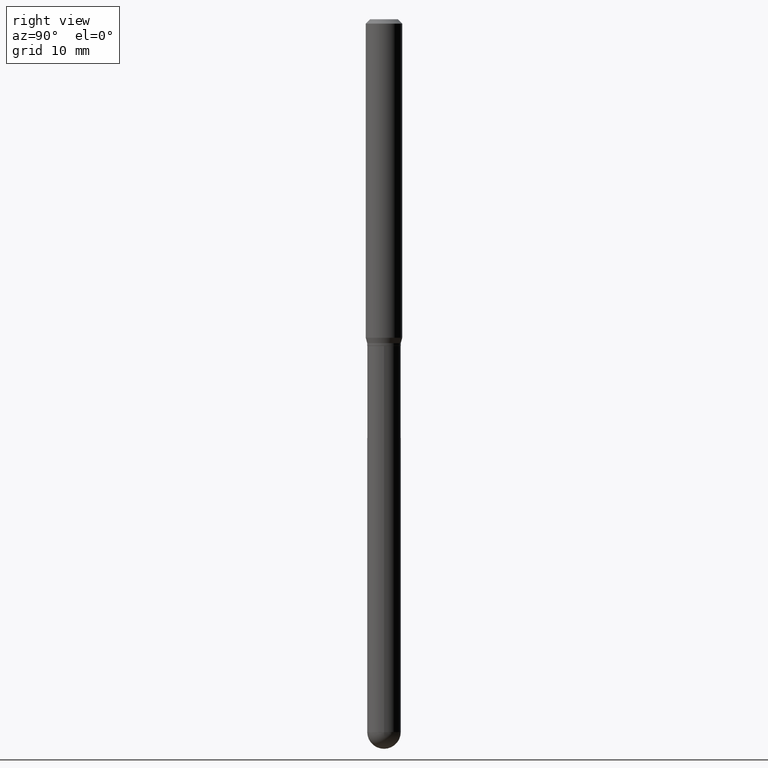
[diagram: clean part render]
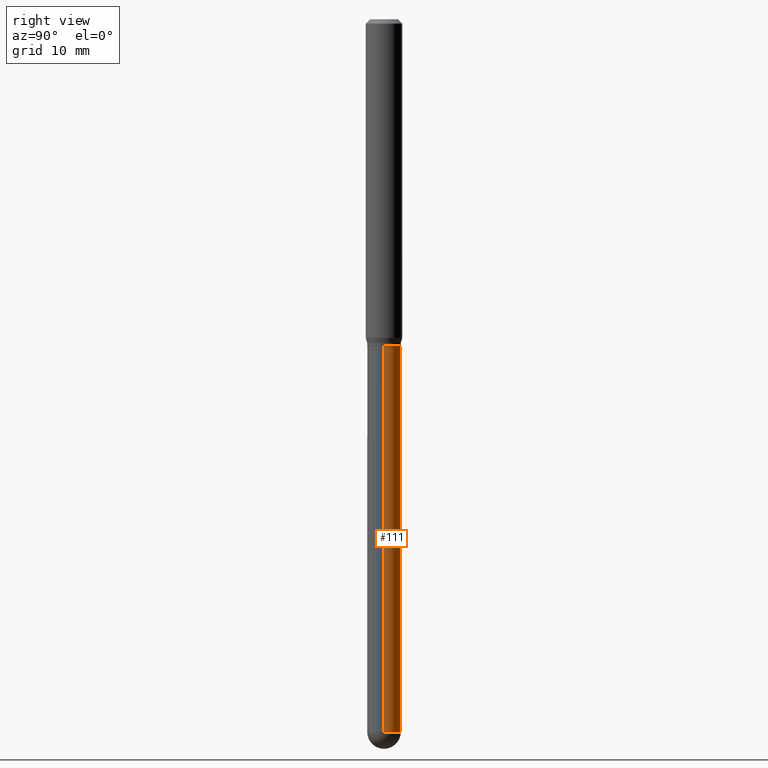
[diagram: same view with one face highlighted and labeled with its STEP entity id]
A machine part, right view. The second image highlights one B-rep face of the part: STEP entity #111.
In plain terms, the highlighted cylindrical surface (edge-blend (fillet) strip) has radius 1.4605 mm, axis along (-0, 0, 1).
Its self-contained STEP definition (entity closure, byte-faithful):
#20 = CARTESIAN_POINT ( 'NONE',  ( -0.05750000000000000250, -5.810639061752296196E-15, -1.120000000000000329 ) ) ;
#31 = EDGE_LOOP ( 'NONE', ( #298, #279, #122, #299, #134 ) ) ;
#37 = DIRECTION ( 'NONE',  ( -2.445468806185136877E-29, 3.491481338843145188E-15, 1.000000000000000000 ) ) ;
#42 = CARTESIAN_POINT ( 'NONE',  ( 0.05750000000000000250, -4.311979453471284209E-15, -1.120000000000000329 ) ) ;
#68 = CYLINDRICAL_SURFACE ( 'NONE', #506, 0.05750000000000000250 ) ;
#85 = VERTEX_POINT ( 'NONE', #20 ) ;
#88 = EDGE_CURVE ( 'NONE', #437, #252, #151, .T. ) ;
#111 = ADVANCED_FACE ( 'NONE', ( #491 ), #68, .T. ) ;
#113 = AXIS2_PLACEMENT_3D ( 'NONE', #294, #182, #453 ) ;
#119 = CARTESIAN_POINT ( 'NONE',  ( 2.738925062927354020E-29, -3.910459099504324188E-15, -1.120000000000000329 ) ) ;
#122 = ORIENTED_EDGE ( 'NONE', *, *, #318, .F. ) ;
#123 = EDGE_CURVE ( 'NONE', #314, #333, #433, .T. ) ;
#134 = ORIENTED_EDGE ( 'NONE', *, *, #251, .T. ) ;
#145 = CARTESIAN_POINT ( 'NONE',  ( 0.000000000000000000, 0.000000000000000000, 0.000000000000000000 ) ) ;
#146 = DIRECTION ( 'NONE',  ( 1.000000000000000000, -6.982962677686265133E-15, 0.000000000000000000 ) ) ;
#149 = DIRECTION ( 'NONE',  ( -2.445468806185136877E-29, 3.491481338843145188E-15, 1.000000000000000000 ) ) ;
#151 = LINE ( 'NONE', #323, #194 ) ;
#160 = CARTESIAN_POINT ( 'NONE',  ( 0.05750000000000000250, -6.620721488781313792E-15, -2.442499999999999893 ) ) ;
#165 = DIRECTION ( 'NONE',  ( 1.000000000000000000, -6.982962677686273810E-15, 0.000000000000000000 ) ) ;
#182 = DIRECTION ( 'NONE',  ( -2.445468806185136597E-29, 3.491481338843145583E-15, 1.000000000000000000 ) ) ;
#187 = LINE ( 'NONE', #470, #443 ) ;
#194 = VECTOR ( 'NONE', #149, 39.37007874015748143 ) ;
#228 = DIRECTION ( 'NONE',  ( 1.000000000000000000, -6.982962677686265922E-15, 4.876176775795935232E-29 ) ) ;
#251 = EDGE_CURVE ( 'NONE', #437, #314, #393, .T. ) ;
#252 = VERTEX_POINT ( 'NONE', #42 ) ;
#278 = CIRCLE ( 'NONE', #466, 0.05750000000000000250 ) ;
#279 = ORIENTED_EDGE ( 'NONE', *, *, #395, .T. ) ;
#294 = CARTESIAN_POINT ( 'NONE',  ( 5.973057559107196227E-29, -8.527943170124383355E-15, -2.442499999999999893 ) ) ;
#298 = ORIENTED_EDGE ( 'NONE', *, *, #123, .T. ) ;
#299 = ORIENTED_EDGE ( 'NONE', *, *, #88, .F. ) ;
#314 = VERTEX_POINT ( 'NONE', #322 ) ;
#318 = EDGE_CURVE ( 'NONE', #252, #85, #278, .T. ) ;
#322 = CARTESIAN_POINT ( 'NONE',  ( 4.015203539670203189E-16, 0.05749999999999149541, -2.442500000000000338 ) ) ;
#323 = CARTESIAN_POINT ( 'NONE',  ( 0.05750000000000000250, -4.015203539669603161E-16, 2.803801646082662941E-30 ) ) ;
#333 = VERTEX_POINT ( 'NONE', #420 ) ;
#393 = CIRCLE ( 'NONE', #435, 0.05750000000000000250 ) ;
#395 = EDGE_CURVE ( 'NONE', #333, #85, #187, .T. ) ;
#420 = CARTESIAN_POINT ( 'NONE',  ( -0.05750000000000000250, -5.810639061752296196E-15, -2.442499999999999893 ) ) ;
#433 = CIRCLE ( 'NONE', #113, 0.05750000000000000250 ) ;
#435 = AXIS2_PLACEMENT_3D ( 'NONE', #438, #441, #165 ) ;
#437 = VERTEX_POINT ( 'NONE', #160 ) ;
#438 = CARTESIAN_POINT ( 'NONE',  ( 5.973057559107196227E-29, -8.527943170124383355E-15, -2.442499999999999893 ) ) ;
#441 = DIRECTION ( 'NONE',  ( -2.445468806185136597E-29, 3.491481338843145583E-15, 1.000000000000000000 ) ) ;
#443 = VECTOR ( 'NONE', #37, 39.37007874015748143 ) ;
#453 = DIRECTION ( 'NONE',  ( 1.000000000000000000, -6.982962677686273810E-15, 0.000000000000000000 ) ) ;
#458 = DIRECTION ( 'NONE',  ( -2.445468806185136597E-29, 3.491481338843145583E-15, 1.000000000000000000 ) ) ;
#466 = AXIS2_PLACEMENT_3D ( 'NONE', #119, #500, #146 ) ;
#470 = CARTESIAN_POINT ( 'NONE',  ( -0.05750000000000000250, 4.085620730620576246E-16, -2.828387676896570712E-30 ) ) ;
#491 = FACE_OUTER_BOUND ( 'NONE', #31, .T. ) ;
#500 = DIRECTION ( 'NONE',  ( -2.445468806185136597E-29, 3.491481338843145583E-15, 1.000000000000000000 ) ) ;
#506 = AXIS2_PLACEMENT_3D ( 'NONE', #145, #458, #228 ) ;